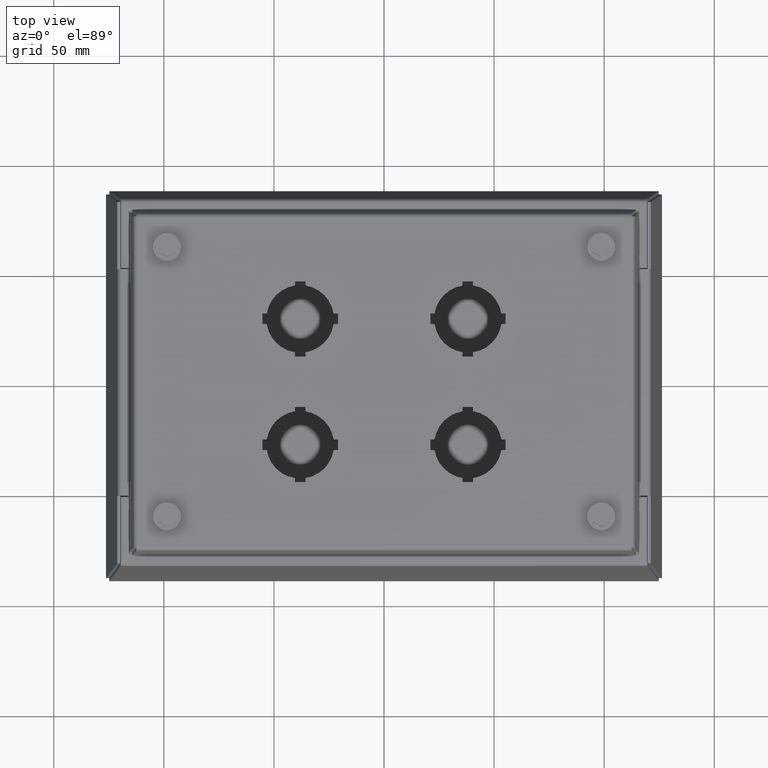
[diagram: clean part render]
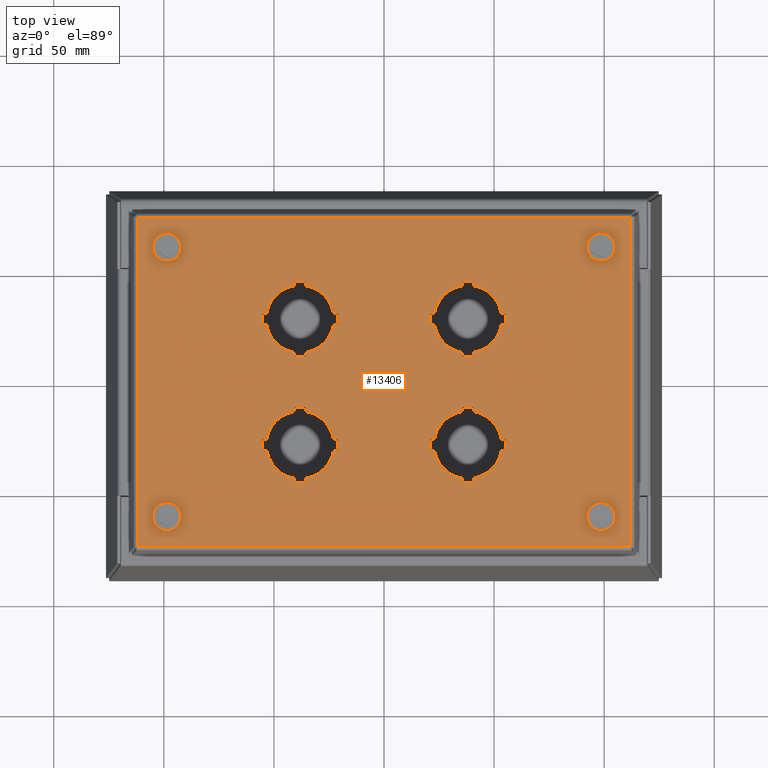
[diagram: same view with one face highlighted and labeled with its STEP entity id]
A machine part, top view. The second image highlights one B-rep face of the part: STEP entity #13406.
In plain terms, the highlighted planar face has unit normal (0, 0, -1).
Its self-contained STEP definition (entity closure, byte-faithful):
#86 = DIRECTION ( 'NONE',  ( 1.000000000000000000, -0.000000000000000000, -0.000000000000000000 ) ) ;
#89 = EDGE_CURVE ( 'NONE', #6022, #2718, #14636, .T. ) ;
#103 = VERTEX_POINT ( 'NONE', #6390 ) ;
#111 = EDGE_CURVE ( 'NONE', #238, #10286, #4180, .T. ) ;
#121 = VERTEX_POINT ( 'NONE', #11162 ) ;
#126 = VERTEX_POINT ( 'NONE', #12635 ) ;
#128 = DIRECTION ( 'NONE',  ( 1.000000000000000000, -0.000000000000000000, -0.000000000000000000 ) ) ;
#132 = VERTEX_POINT ( 'NONE', #14825 ) ;
#141 = EDGE_LOOP ( 'NONE', ( #8679, #6070, #14256, #5951, #10844, #9612, #4865, #6375, #920, #5746, #3153, #11161, #11823, #6807, #12253, #11814 ) ) ;
#166 = FACE_BOUND ( 'NONE', #13700, .T. ) ;
#180 = VERTEX_POINT ( 'NONE', #7997 ) ;
#218 = CARTESIAN_POINT ( 'NONE',  ( 4.400837431718741755, 3.006499999999999950, 4.532000000000000917 ) ) ;
#236 = DIRECTION ( 'NONE',  ( -1.000000000000000000, 3.666652647367840208E-15, 4.490354428184182989E-31 ) ) ;
#238 = VERTEX_POINT ( 'NONE', #855 ) ;
#252 = VECTOR ( 'NONE', #4561, 39.37007874015748143 ) ;
#279 = VERTEX_POINT ( 'NONE', #15464 ) ;
#280 = CARTESIAN_POINT ( 'NONE',  ( 1.500000000000003997, 1.124999999999999778, 4.532000000000000028 ) ) ;
#307 = LINE ( 'NONE', #13124, #4016 ) ;
#309 = LINE ( 'NONE', #11246, #11973 ) ;
#328 = ORIENTED_EDGE ( 'NONE', *, *, #5633, .T. ) ;
#334 = CARTESIAN_POINT ( 'NONE',  ( 1.595000000000003970, 1.796999999999995934, 4.532000000000000028 ) ) ;
#339 = CARTESIAN_POINT ( 'NONE',  ( 2.172000000000000153, 1.219999999999999751, 4.532000000000000028 ) ) ;
#342 = ORIENTED_EDGE ( 'NONE', *, *, #5174, .T. ) ;
#355 = VERTEX_POINT ( 'NONE', #15391 ) ;
#427 = CARTESIAN_POINT ( 'NONE',  ( 1.500000000000003997, -1.125000000000000222, 4.532000000000000028 ) ) ;
#468 = EDGE_CURVE ( 'NONE', #1715, #925, #11954, .T. ) ;
#479 = VECTOR ( 'NONE', #13205, 39.37007874015748143 ) ;
#526 = EDGE_CURVE ( 'NONE', #11867, #14862, #3723, .T. ) ;
#653 = EDGE_CURVE ( 'NONE', #180, #13330, #5141, .T. ) ;
#692 = ORIENTED_EDGE ( 'NONE', *, *, #2820, .T. ) ;
#707 = CARTESIAN_POINT ( 'NONE',  ( 4.400837431718744419, 2.934337431718726741, 4.532000000000000917 ) ) ;
#720 = CARTESIAN_POINT ( 'NONE',  ( 1.405000000000004023, -0.4530000000000042881, 4.532000000000000028 ) ) ;
#744 = CARTESIAN_POINT ( 'NONE',  ( 0.8280000000000119487, -1.220000000000001528, 4.532000000000000028 ) ) ;
#751 = EDGE_CURVE ( 'NONE', #2616, #3397, #14327, .T. ) ;
#775 = CIRCLE ( 'NONE', #14242, 0.6049999999999960965 ) ;
#782 = LINE ( 'NONE', #13126, #479 ) ;
#821 = VECTOR ( 'NONE', #10707, 39.37007874015748143 ) ;
#833 = VECTOR ( 'NONE', #4841, 39.37007874015748143 ) ;
#846 = ORIENTED_EDGE ( 'NONE', *, *, #2016, .T. ) ;
#855 = CARTESIAN_POINT ( 'NONE',  ( 0.9025052301484217665, -1.220000000000000639, 4.532000000000000028 ) ) ;
#887 = VERTEX_POINT ( 'NONE', #707 ) ;
#920 = ORIENTED_EDGE ( 'NONE', *, *, #9769, .T. ) ;
#925 = VERTEX_POINT ( 'NONE', #14932 ) ;
#1034 = EDGE_CURVE ( 'NONE', #10819, #10819, #12416, .T. ) ;
#1038 = DIRECTION ( 'NONE',  ( 0.000000000000000000, 1.224646799147350002E-16, -1.000000000000000000 ) ) ;
#1059 = CARTESIAN_POINT ( 'NONE',  ( 2.172000000000000153, -1.030000000000000249, 4.532000000000000028 ) ) ;
#1064 = ORIENTED_EDGE ( 'NONE', *, *, #7065, .T. ) ;
#1096 = LINE ( 'NONE', #15334, #13152 ) ;
#1108 = DIRECTION ( 'NONE',  ( 1.000000000000000000, -0.000000000000000000, -0.000000000000000000 ) ) ;
#1119 = ORIENTED_EDGE ( 'NONE', *, *, #4466, .T. ) ;
#1130 = LINE ( 'NONE', #10671, #10572 ) ;
#1136 = ORIENTED_EDGE ( 'NONE', *, *, #111, .T. ) ;
#1146 = VECTOR ( 'NONE', #9079, 39.37007874015748143 ) ;
#1151 = DIRECTION ( 'NONE',  ( 0.000000000000000000, -1.000000000000000000, 0.000000000000000000 ) ) ;
#1172 = EDGE_CURVE ( 'NONE', #8537, #8537, #3665, .T. ) ;
#1235 = CARTESIAN_POINT ( 'NONE',  ( -4.472999999999999865, 3.006499999999999950, 4.532000000000000917 ) ) ;
#1251 = ORIENTED_EDGE ( 'NONE', *, *, #7287, .T. ) ;
#1296 = VERTEX_POINT ( 'NONE', #13515 ) ;
#1307 = DIRECTION ( 'NONE',  ( 1.000000000000000000, -0.000000000000000000, -0.000000000000000000 ) ) ;
#1336 = CARTESIAN_POINT ( 'NONE',  ( 0.8280000000000119487, -1.030000000000000249, 4.532000000000000028 ) ) ;
#1354 = CARTESIAN_POINT ( 'NONE',  ( -1.404999999999999805, -1.796999999999996378, 4.532000000000000028 ) ) ;
#1405 = LINE ( 'NONE', #12212, #833 ) ;
#1422 = CARTESIAN_POINT ( 'NONE',  ( -1.500000000000000222, -1.125000000000000222, 4.532000000000000028 ) ) ;
#1426 = DIRECTION ( 'NONE',  ( 0.000000000000000000, 1.000000000000000000, 0.000000000000000000 ) ) ;
#1432 = CARTESIAN_POINT ( 'NONE',  ( -1.594999999999995977, -0.5275052301484176587, 4.532000000000000028 ) ) ;
#1452 = ORIENTED_EDGE ( 'NONE', *, *, #9852, .T. ) ;
#1465 = CARTESIAN_POINT ( 'NONE',  ( -2.097494769851582674, 1.029999999999999805, 4.532000000000000028 ) ) ;
#1506 = CARTESIAN_POINT ( 'NONE',  ( -1.500000000000000222, -1.125000000000000222, 4.532000000000000028 ) ) ;
#1622 = CARTESIAN_POINT ( 'NONE',  ( -3.883000000000000451, -2.409500000000000419, 4.532000000000000028 ) ) ;
#1630 = EDGE_CURVE ( 'NONE', #10850, #2249, #5049, .T. ) ;
#1693 = VERTEX_POINT ( 'NONE', #14819 ) ;
#1692 = DIRECTION ( 'NONE',  ( 1.000000000000000000, -0.000000000000000000, -0.000000000000000000 ) ) ;
#1715 = VERTEX_POINT ( 'NONE', #3067 ) ;
#1718 = EDGE_CURVE ( 'NONE', #9697, #11840, #12478, .T. ) ;
#1736 = ORIENTED_EDGE ( 'NONE', *, *, #8189, .T. ) ;
#1746 = CARTESIAN_POINT ( 'NONE',  ( -0.9025052301484178807, 1.219999999999999751, 4.532000000000000028 ) ) ;
#1766 = CARTESIAN_POINT ( 'NONE',  ( -1.594999999999995977, 1.796999999999995934, 4.532000000000000028 ) ) ;
#1783 = VECTOR ( 'NONE', #15237, 39.37007874015748143 ) ;
#1794 = CARTESIAN_POINT ( 'NONE',  ( -1.404999999999999805, -1.722494769851583118, 4.532000000000000028 ) ) ;
#1804 = EDGE_CURVE ( 'NONE', #11990, #279, #13943, .T. ) ;
#1848 = DIRECTION ( 'NONE',  ( -3.666652647367819698E-15, 1.000000000000000000, 1.224646799147350002E-16 ) ) ;
#1897 = EDGE_CURVE ( 'NONE', #5619, #14212, #15279, .T. ) ;
#1912 = EDGE_CURVE ( 'NONE', #14711, #2460, #6904, .T. ) ;
#1972 = CARTESIAN_POINT ( 'NONE',  ( -1.404999999999999805, 0.4530000000000036220, 4.532000000000000028 ) ) ;
#1978 = CIRCLE ( 'NONE', #9970, 0.1175000000000000488 ) ;
#1998 = ORIENTED_EDGE ( 'NONE', *, *, #6185, .T. ) ;
#2016 = EDGE_CURVE ( 'NONE', #10782, #9299, #2688, .T. ) ;
#2026 = VECTOR ( 'NONE', #8451, 39.37007874015748143 ) ;
#2045 = DIRECTION ( 'NONE',  ( -1.000000000000000000, -3.666652647367829953E-15, -4.490354428184169852E-31 ) ) ;
#2051 = DIRECTION ( 'NONE',  ( 0.000000000000000000, 1.000000000000000000, 1.224646799147350002E-16 ) ) ;
#2067 = VERTEX_POINT ( 'NONE', #14329 ) ;
#2094 = VERTEX_POINT ( 'NONE', #11496 ) ;
#2103 = EDGE_CURVE ( 'NONE', #4276, #9691, #11578, .T. ) ;
#2136 = CARTESIAN_POINT ( 'NONE',  ( -1.594999999999995977, 0.4530000000000036220, 4.532000000000000028 ) ) ;
#2166 = CARTESIAN_POINT ( 'NONE',  ( 3.883000000000000451, 2.409499999999999975, 4.532000000000000917 ) ) ;
#2194 = VECTOR ( 'NONE', #8526, 39.37007874015748143 ) ;
#2220 = VECTOR ( 'NONE', #13894, 39.37007874015748143 ) ;
#2249 = VERTEX_POINT ( 'NONE', #6434 ) ;
#2275 = EDGE_CURVE ( 'NONE', #925, #7331, #12934, .T. ) ;
#2285 = CARTESIAN_POINT ( 'NONE',  ( -4.400837431718740866, 3.006499999999999950, 4.532000000000000917 ) ) ;
#2315 = VERTEX_POINT ( 'NONE', #10332 ) ;
#2321 = AXIS2_PLACEMENT_3D ( 'NONE', #12256, #6308, #11076 ) ;
#2347 = EDGE_CURVE ( 'NONE', #13274, #14216, #4609, .T. ) ;
#2364 = ORIENTED_EDGE ( 'NONE', *, *, #12130, .T. ) ;
#2379 = DIRECTION ( 'NONE',  ( -1.000000000000000000, -0.000000000000000000, -0.000000000000000000 ) ) ;
#2407 = VERTEX_POINT ( 'NONE', #11508 ) ;
#2442 = ORIENTED_EDGE ( 'NONE', *, *, #2914, .T. ) ;
#2460 = VERTEX_POINT ( 'NONE', #11979 ) ;
#2526 = CARTESIAN_POINT ( 'NONE',  ( 3.883000000000000451, 2.291999999999999815, 4.532000000000000917 ) ) ;
#2563 = ORIENTED_EDGE ( 'NONE', *, *, #8344, .T. ) ;
#2603 = ORIENTED_EDGE ( 'NONE', *, *, #653, .T. ) ;
#2616 = VERTEX_POINT ( 'NONE', #14786 ) ;
#2663 = CARTESIAN_POINT ( 'NONE',  ( -0.8280000000000039551, 1.219999999999999751, 4.532000000000000028 ) ) ;
#2688 = CIRCLE ( 'NONE', #8682, 0.6049999999999960965 ) ;
#2718 = VERTEX_POINT ( 'NONE', #14060 ) ;
#2731 = EDGE_CURVE ( 'NONE', #4619, #8573, #7198, .T. ) ;
#2820 = EDGE_CURVE ( 'NONE', #3021, #1693, #782, .T. ) ;
#2904 = VERTEX_POINT ( 'NONE', #8925 ) ;
#2911 = LINE ( 'NONE', #7676, #10787 ) ;
#2914 = EDGE_CURVE ( 'NONE', #11029, #4276, #13222, .T. ) ;
#2989 = CARTESIAN_POINT ( 'NONE',  ( 1.405000000000004023, 0.4530000000000036220, 4.532000000000000028 ) ) ;
#3003 = VERTEX_POINT ( 'NONE', #1766 ) ;
#3010 = EDGE_CURVE ( 'NONE', #10050, #132, #309, .T. ) ;
#3021 = VERTEX_POINT ( 'NONE', #6245 ) ;
#3067 = CARTESIAN_POINT ( 'NONE',  ( -1.404999999999999805, 1.796999999999995934, 4.532000000000000028 ) ) ;
#3094 = ORIENTED_EDGE ( 'NONE', *, *, #4020, .T. ) ;
#3122 = DIRECTION ( 'NONE',  ( 0.000000000000000000, 1.000000000000000000, 0.000000000000000000 ) ) ;
#3153 = ORIENTED_EDGE ( 'NONE', *, *, #15190, .T. ) ;
#3177 = DIRECTION ( 'NONE',  ( 0.000000000000000000, 1.224646799147350002E-16, -1.000000000000000000 ) ) ;
#3200 = AXIS2_PLACEMENT_3D ( 'NONE', #12115, #6007, #9357 ) ;
#3272 = ORIENTED_EDGE ( 'NONE', *, *, #1912, .T. ) ;
#3326 = VECTOR ( 'NONE', #9585, 39.37007874015748143 ) ;
#3353 = DIRECTION ( 'NONE',  ( 0.000000000000000000, 1.000000000000000000, 0.000000000000000000 ) ) ;
#3385 = CARTESIAN_POINT ( 'NONE',  ( 1.595000000000003970, -1.722494769851582674, 4.532000000000000028 ) ) ;
#3397 = VERTEX_POINT ( 'NONE', #1059 ) ;
#3429 = VECTOR ( 'NONE', #7294, 39.37007874015748143 ) ;
#3450 = CARTESIAN_POINT ( 'NONE',  ( -2.171999999999992159, 1.030000000000000027, 4.532000000000000028 ) ) ;
#3485 = DIRECTION ( 'NONE',  ( -0.000000000000000000, -1.000000000000000000, -1.224646799147350002E-16 ) ) ;
#3490 = VECTOR ( 'NONE', #2045, 39.37007874015748143 ) ;
#3500 = CARTESIAN_POINT ( 'NONE',  ( -2.097494769851582674, -1.220000000000000417, 4.532000000000000028 ) ) ;
#3583 = EDGE_LOOP ( 'NONE', ( #9933, #8631, #3272, #4874, #2364, #12902, #10889, #1251, #3094, #1119, #13497, #1998, #7336, #692, #11236, #10847 ) ) ;
#3612 = VECTOR ( 'NONE', #236, 39.37007874015748143 ) ;
#3619 = VERTEX_POINT ( 'NONE', #12075 ) ;
#3649 = CARTESIAN_POINT ( 'NONE',  ( -2.171999999999992159, -1.030000000000000249, 4.532000000000000028 ) ) ;
#3655 = DIRECTION ( 'NONE',  ( -0.000000000000000000, 1.224646799147350002E-16, -1.000000000000000000 ) ) ;
#3663 = CARTESIAN_POINT ( 'NONE',  ( -1.594999999999995977, 1.796999999999995934, 4.532000000000000028 ) ) ;
#3665 = CIRCLE ( 'NONE', #6913, 0.1175000000000000488 ) ;
#3723 = LINE ( 'NONE', #3649, #12152 ) ;
#3766 = AXIS2_PLACEMENT_3D ( 'NONE', #280, #13559, #6135 ) ;
#3832 = EDGE_LOOP ( 'NONE', ( #10377 ) ) ;
#3840 = LINE ( 'NONE', #8601, #7241 ) ;
#3850 = CARTESIAN_POINT ( 'NONE',  ( -3.883000000000000451, 2.291999999999999815, 4.532000000000000917 ) ) ;
#3863 = VECTOR ( 'NONE', #13172, 39.37007874015748143 ) ;
#3888 = CARTESIAN_POINT ( 'NONE',  ( 0.8280000000000119487, 1.219999999999999751, 4.532000000000000028 ) ) ;
#3933 = CARTESIAN_POINT ( 'NONE',  ( 1.595000000000003970, -0.4530000000000042881, 4.532000000000000028 ) ) ;
#3966 = CARTESIAN_POINT ( 'NONE',  ( -2.097494769851582674, -1.030000000000000249, 4.532000000000000028 ) ) ;
#4016 = VECTOR ( 'NONE', #4980, 39.37007874015748143 ) ;
#4020 = EDGE_CURVE ( 'NONE', #13190, #1296, #9320, .T. ) ;
#4024 = EDGE_LOOP ( 'NONE', ( #13020 ) ) ;
#4080 = EDGE_CURVE ( 'NONE', #2249, #8225, #9747, .T. ) ;
#4123 = CARTESIAN_POINT ( 'NONE',  ( 0.8280000000000119487, -1.030000000000000249, 4.532000000000000028 ) ) ;
#4180 = LINE ( 'NONE', #6608, #14625 ) ;
#4189 = DIRECTION ( 'NONE',  ( 1.000000000000000000, -0.000000000000000000, -0.000000000000000000 ) ) ;
#4191 = CARTESIAN_POINT ( 'NONE',  ( 1.405000000000004023, -1.796999999999996378, 4.532000000000000028 ) ) ;
#4196 = CARTESIAN_POINT ( 'NONE',  ( -4.472999999999999865, 2.934337431718752054, 4.532000000000000917 ) ) ;
#4216 = ORIENTED_EDGE ( 'NONE', *, *, #6339, .T. ) ;
#4276 = VERTEX_POINT ( 'NONE', #7411 ) ;
#4284 = ORIENTED_EDGE ( 'NONE', *, *, #751, .T. ) ;
#4369 = VERTEX_POINT ( 'NONE', #9765 ) ;
#4397 = EDGE_CURVE ( 'NONE', #12239, #12239, #1978, .T. ) ;
#4399 = EDGE_CURVE ( 'NONE', #8715, #103, #10220, .T. ) ;
#4404 = EDGE_LOOP ( 'NONE', ( #14560, #7510, #12812, #2442, #13080, #2563, #13389, #846, #12971, #13078, #6928, #13229, #9741, #2603, #13909, #12163 ) ) ;
#4454 = FACE_BOUND ( 'NONE', #14099, .T. ) ;
#4466 = EDGE_CURVE ( 'NONE', #1296, #9823, #13738, .T. ) ;
#4502 = CIRCLE ( 'NONE', #9250, 0.6049999999999959854 ) ;
#4558 = DIRECTION ( 'NONE',  ( -2.566656853157479705E-14, -1.000000000000000000, -1.224646799147350002E-16 ) ) ;
#4561 = DIRECTION ( 'NONE',  ( -0.000000000000000000, -1.000000000000000000, -1.224646799147350002E-16 ) ) ;
#4574 = CARTESIAN_POINT ( 'NONE',  ( -2.171999999999992159, 1.219999999999999751, 4.532000000000000028 ) ) ;
#4595 = ORIENTED_EDGE ( 'NONE', *, *, #11744, .F. ) ;
#4609 = LINE ( 'NONE', #720, #14696 ) ;
#4619 = VERTEX_POINT ( 'NONE', #5988 ) ;
#4640 = LINE ( 'NONE', #2136, #11043 ) ;
#4673 = VECTOR ( 'NONE', #9738, 39.37007874015748143 ) ;
#4717 = CARTESIAN_POINT ( 'NONE',  ( 1.500000000000003997, -1.125000000000000222, 4.532000000000000028 ) ) ;
#4767 = CARTESIAN_POINT ( 'NONE',  ( -2.097494769851582230, -1.220000000000000639, 4.532000000000000028 ) ) ;
#4770 = DIRECTION ( 'NONE',  ( -1.000000000000000000, -0.000000000000000000, -0.000000000000000000 ) ) ;
#4771 = CIRCLE ( 'NONE', #3766, 0.6049999999999959854 ) ;
#4796 = CARTESIAN_POINT ( 'NONE',  ( -0.8280000000000039551, -1.220000000000000417, 4.532000000000000028 ) ) ;
#4841 = DIRECTION ( 'NONE',  ( -0.000000000000000000, -1.000000000000000000, -1.224646799147350002E-16 ) ) ;
#4865 = ORIENTED_EDGE ( 'NONE', *, *, #11783, .T. ) ;
#4874 = ORIENTED_EDGE ( 'NONE', *, *, #5714, .T. ) ;
#4890 = ORIENTED_EDGE ( 'NONE', *, *, #1630, .T. ) ;
#4959 = CARTESIAN_POINT ( 'NONE',  ( 2.097494769851586671, 1.219999999999999751, 4.532000000000000028 ) ) ;
#4980 = DIRECTION ( 'NONE',  ( -0.000000000000000000, 1.000000000000000000, 1.224646799147350002E-16 ) ) ;
#5010 = VECTOR ( 'NONE', #14397, 39.37007874015748143 ) ;
#5011 = AXIS2_PLACEMENT_3D ( 'NONE', #13008, #1038, #5807 ) ;
#5049 = LINE ( 'NONE', #14429, #4673 ) ;
#5051 = CARTESIAN_POINT ( 'NONE',  ( 1.405000000000004023, 0.5275052301484172146, 4.532000000000000028 ) ) ;
#5056 = EDGE_CURVE ( 'NONE', #14862, #10396, #775, .T. ) ;
#5094 = LINE ( 'NONE', #8351, #5256 ) ;
#5111 = LINE ( 'NONE', #3933, #2026 ) ;
#5122 = LINE ( 'NONE', #9734, #1146 ) ;
#5141 = LINE ( 'NONE', #14909, #12168 ) ;
#5147 = LINE ( 'NONE', #9988, #8608 ) ;
#5174 = EDGE_CURVE ( 'NONE', #13334, #2616, #10251, .T. ) ;
#5182 = DIRECTION ( 'NONE',  ( 0.000000000000000000, 1.000000000000000000, 0.000000000000000000 ) ) ;
#5189 = CARTESIAN_POINT ( 'NONE',  ( 2.172000000000000153, 1.219999999999999751, 4.532000000000000028 ) ) ;
#5193 = AXIS2_PLACEMENT_3D ( 'NONE', #9155, #11665, #3122 ) ;
#5197 = DIRECTION ( 'NONE',  ( -0.000000000000000000, -1.000000000000000000, -1.224646799147350002E-16 ) ) ;
#5242 = VECTOR ( 'NONE', #11559, 39.37007874015748143 ) ;
#5256 = VECTOR ( 'NONE', #4770, 39.37007874015748143 ) ;
#5263 = VECTOR ( 'NONE', #86, 39.37007874015748143 ) ;
#5265 = VERTEX_POINT ( 'NONE', #11291 ) ;
#5327 = CIRCLE ( 'NONE', #11838, 0.6049999999999960965 ) ;
#5352 = CARTESIAN_POINT ( 'NONE',  ( -2.097494769851582674, 1.219999999999999751, 4.532000000000000028 ) ) ;
#5374 = EDGE_CURVE ( 'NONE', #11840, #11029, #5094, .T. ) ;
#5408 = CARTESIAN_POINT ( 'NONE',  ( -1.500000000000000222, 1.124999999999999778, 4.532000000000000028 ) ) ;
#5432 = EDGE_CURVE ( 'NONE', #126, #2067, #9632, .T. ) ;
#5446 = VERTEX_POINT ( 'NONE', #1336 ) ;
#5456 = CARTESIAN_POINT ( 'NONE',  ( 1.595000000000005302, -0.5275052301484179917, 4.532000000000000028 ) ) ;
#5504 = DIRECTION ( 'NONE',  ( 0.000000000000000000, 1.224646799147350002E-16, -1.000000000000000000 ) ) ;
#5534 = CIRCLE ( 'NONE', #13530, 0.6049999999999959854 ) ;
#5554 = DIRECTION ( 'NONE',  ( 0.000000000000000000, -1.000000000000000000, 0.000000000000000000 ) ) ;
#5559 = CARTESIAN_POINT ( 'NONE',  ( -1.594999999999995977, -1.796999999999996378, 4.532000000000000028 ) ) ;
#5585 = ORIENTED_EDGE ( 'NONE', *, *, #13140, .T. ) ;
#5588 = LINE ( 'NONE', #12795, #10107 ) ;
#5591 = AXIS2_PLACEMENT_3D ( 'NONE', #13635, #5504, #12628 ) ;
#5603 = CARTESIAN_POINT ( 'NONE',  ( 0.8280000000000119487, 1.029999999999999805, 4.532000000000000028 ) ) ;
#5619 = VERTEX_POINT ( 'NONE', #11501 ) ;
#5625 = DIRECTION ( 'NONE',  ( -0.000000000000000000, -1.000000000000000000, -1.224646799147350002E-16 ) ) ;
#5629 = CARTESIAN_POINT ( 'NONE',  ( 1.500000000000003997, 1.124999999999999778, 4.532000000000000028 ) ) ;
#5633 = EDGE_CURVE ( 'NONE', #2904, #2904, #9515, .T. ) ;
#5641 = FACE_BOUND ( 'NONE', #3583, .T. ) ;
#5710 = DIRECTION ( 'NONE',  ( 1.000000000000000000, -0.000000000000000000, -0.000000000000000000 ) ) ;
#5714 = EDGE_CURVE ( 'NONE', #2460, #9257, #4502, .T. ) ;
#5729 = CARTESIAN_POINT ( 'NONE',  ( 0.9025052301484213224, 1.029999999999999805, 4.532000000000000028 ) ) ;
#5746 = ORIENTED_EDGE ( 'NONE', *, *, #10254, .T. ) ;
#5807 = DIRECTION ( 'NONE',  ( 0.000000000000000000, 1.000000000000000000, 0.000000000000000000 ) ) ;
#5873 = EDGE_CURVE ( 'NONE', #3003, #1715, #14303, .T. ) ;
#5931 = VERTEX_POINT ( 'NONE', #9183 ) ;
#5951 = ORIENTED_EDGE ( 'NONE', *, *, #11750, .T. ) ;
#5988 = CARTESIAN_POINT ( 'NONE',  ( -1.404999999999999805, -0.5275052301484178807, 4.532000000000000028 ) ) ;
#6007 = DIRECTION ( 'NONE',  ( 0.000000000000000000, 1.224646799147350002E-16, -1.000000000000000000 ) ) ;
#6022 = VERTEX_POINT ( 'NONE', #5352 ) ;
#6050 = DIRECTION ( 'NONE',  ( 0.000000000000000000, 1.224646799147350002E-16, -1.000000000000000000 ) ) ;
#6070 = ORIENTED_EDGE ( 'NONE', *, *, #5432, .T. ) ;
#6090 = DIRECTION ( 'NONE',  ( 0.000000000000000000, -1.000000000000000000, 0.000000000000000000 ) ) ;
#6135 = DIRECTION ( 'NONE',  ( 0.000000000000000000, 1.000000000000000000, 0.000000000000000000 ) ) ;
#6185 = EDGE_CURVE ( 'NONE', #10506, #3619, #5534, .T. ) ;
#6213 = LINE ( 'NONE', #1432, #12243 ) ;
#6226 = CARTESIAN_POINT ( 'NONE',  ( -0.9025052301484173256, -1.030000000000000249, 4.532000000000000028 ) ) ;
#6245 = CARTESIAN_POINT ( 'NONE',  ( 1.405000000000003801, 1.796999999999995934, 4.532000000000000028 ) ) ;
#6276 = LINE ( 'NONE', #339, #2194 ) ;
#6284 = EDGE_CURVE ( 'NONE', #14628, #2315, #4771, .T. ) ;
#6290 = CARTESIAN_POINT ( 'NONE',  ( -3.883000000000000451, -2.527000000000000579, 4.532000000000000028 ) ) ;
#6308 = DIRECTION ( 'NONE',  ( 0.000000000000000000, 1.224646799147350002E-16, -1.000000000000000000 ) ) ;
#6325 = CARTESIAN_POINT ( 'NONE',  ( -1.404999999999999805, 1.796999999999995934, 4.532000000000000028 ) ) ;
#6339 = EDGE_CURVE ( 'NONE', #14216, #13334, #5111, .T. ) ;
#6375 = ORIENTED_EDGE ( 'NONE', *, *, #14309, .T. ) ;
#6390 = CARTESIAN_POINT ( 'NONE',  ( 1.405000000000003801, -1.722494769851582896, 4.532000000000000028 ) ) ;
#6410 = DIRECTION ( 'NONE',  ( -0.000000000000000000, 1.224646799147350002E-16, -1.000000000000000000 ) ) ;
#6434 = CARTESIAN_POINT ( 'NONE',  ( 2.097494769851586671, -1.219999999999999085, 4.532000000000000028 ) ) ;
#6481 = VECTOR ( 'NONE', #1848, 39.37007874015748143 ) ;
#6554 = DIRECTION ( 'NONE',  ( 0.000000000000000000, -1.000000000000000000, 0.000000000000000000 ) ) ;
#6572 = ORIENTED_EDGE ( 'NONE', *, *, #14987, .T. ) ;
#6608 = CARTESIAN_POINT ( 'NONE',  ( 0.9025052301484213224, -1.220000000000000417, 4.532000000000000028 ) ) ;
#6723 = DIRECTION ( 'NONE',  ( -0.000000000000000000, 1.224646799147350002E-16, -1.000000000000000000 ) ) ;
#6787 = VECTOR ( 'NONE', #10250, 39.37007874015748143 ) ;
#6788 = EDGE_CURVE ( 'NONE', #9299, #355, #10461, .T. ) ;
#6807 = ORIENTED_EDGE ( 'NONE', *, *, #5873, .T. ) ;
#6898 = VECTOR ( 'NONE', #1108, 39.37007874015748143 ) ;
#6904 = LINE ( 'NONE', #6974, #3429 ) ;
#6913 = AXIS2_PLACEMENT_3D ( 'NONE', #7562, #3655, #6090 ) ;
#6928 = ORIENTED_EDGE ( 'NONE', *, *, #526, .T. ) ;
#6935 = DIRECTION ( 'NONE',  ( 1.000000000000000000, -0.000000000000000000, -0.000000000000000000 ) ) ;
#6974 = CARTESIAN_POINT ( 'NONE',  ( 2.172000000000000153, 1.029999999999999805, 4.532000000000000028 ) ) ;
#7010 = CARTESIAN_POINT ( 'NONE',  ( -0.9025052301484173256, 1.219999999999999751, 4.532000000000000028 ) ) ;
#7065 = EDGE_CURVE ( 'NONE', #14413, #5265, #5327, .T. ) ;
#7117 = EDGE_CURVE ( 'NONE', #2718, #3003, #1130, .T. ) ;
#7121 = CARTESIAN_POINT ( 'NONE',  ( 2.097494769851586671, -1.030000000000000249, 4.532000000000000028 ) ) ;
#7198 = CIRCLE ( 'NONE', #14946, 0.6049999999999960965 ) ;
#7199 = EDGE_CURVE ( 'NONE', #9823, #10506, #13185, .T. ) ;
#7201 = DIRECTION ( 'NONE',  ( -0.000000000000000000, 1.000000000000000000, 1.224646799147350002E-16 ) ) ;
#7229 = CARTESIAN_POINT ( 'NONE',  ( 0.8280000000000119487, 1.219999999999999751, 4.532000000000000028 ) ) ;
#7241 = VECTOR ( 'NONE', #7201, 39.37007874015748143 ) ;
#7287 = EDGE_CURVE ( 'NONE', #15238, #13190, #9075, .T. ) ;
#7294 = DIRECTION ( 'NONE',  ( -1.000000000000000000, 1.833326323683909849E-15, 2.245177214092078795E-31 ) ) ;
#7301 = LINE ( 'NONE', #1354, #3863 ) ;
#7322 = EDGE_CURVE ( 'NONE', #103, #238, #10328, .T. ) ;
#7331 = VERTEX_POINT ( 'NONE', #1746 ) ;
#7336 = ORIENTED_EDGE ( 'NONE', *, *, #12623, .T. ) ;
#7402 = DIRECTION ( 'NONE',  ( -0.000000000000000000, -1.000000000000000000, -1.224646799147350002E-16 ) ) ;
#7411 = CARTESIAN_POINT ( 'NONE',  ( -1.404999999999999805, -1.722494769851582452, 4.532000000000000028 ) ) ;
#7426 = VECTOR ( 'NONE', #5197, 39.37007874015748143 ) ;
#7502 = VECTOR ( 'NONE', #1692, 39.37007874015748143 ) ;
#7510 = ORIENTED_EDGE ( 'NONE', *, *, #1718, .T. ) ;
#7533 = VECTOR ( 'NONE', #10574, 39.37007874015748143 ) ;
#7562 = CARTESIAN_POINT ( 'NONE',  ( -3.883000000000000451, 2.409499999999999975, 4.532000000000000917 ) ) ;
#7564 = DIRECTION ( 'NONE',  ( -3.666652647367829953E-15, 1.000000000000000000, 1.224646799147350002E-16 ) ) ;
#7604 = DIRECTION ( 'NONE',  ( -0.000000000000000000, 1.000000000000000000, 1.224646799147350002E-16 ) ) ;
#7641 = CARTESIAN_POINT ( 'NONE',  ( 2.172000000000000153, -1.220000000000000417, 4.532000000000000028 ) ) ;
#7673 = VECTOR ( 'NONE', #5625, 39.37007874015748143 ) ;
#7676 = CARTESIAN_POINT ( 'NONE',  ( 1.595000000000003970, 0.5275052301484169925, 4.532000000000000028 ) ) ;
#7767 = AXIS2_PLACEMENT_3D ( 'NONE', #15191, #9321, #12930 ) ;
#7773 = DIRECTION ( 'NONE',  ( 0.000000000000000000, 1.224646799147350002E-16, -1.000000000000000000 ) ) ;
#7788 = LINE ( 'NONE', #4123, #7502 ) ;
#7799 = CARTESIAN_POINT ( 'NONE',  ( -1.404999999999999805, -0.4530000000000042881, 4.532000000000000028 ) ) ;
#7800 = AXIS2_PLACEMENT_3D ( 'NONE', #1235, #9693, #14459 ) ;
#7941 = EDGE_CURVE ( 'NONE', #887, #5931, #11944, .T. ) ;
#7970 = FACE_BOUND ( 'NONE', #3832, .T. ) ;
#7997 = CARTESIAN_POINT ( 'NONE',  ( -1.594999999999995977, -0.4530000000000042881, 4.532000000000000028 ) ) ;
#8189 = EDGE_CURVE ( 'NONE', #8225, #11060, #5588, .T. ) ;
#8225 = VERTEX_POINT ( 'NONE', #3385 ) ;
#8344 = EDGE_CURVE ( 'NONE', #9691, #121, #7301, .T. ) ;
#8348 = LINE ( 'NONE', #334, #8377 ) ;
#8351 = CARTESIAN_POINT ( 'NONE',  ( -0.8280000000000039551, -1.220000000000000417, 4.532000000000000028 ) ) ;
#8377 = VECTOR ( 'NONE', #13314, 39.37007874015748143 ) ;
#8442 = CARTESIAN_POINT ( 'NONE',  ( -1.594999999999995977, -0.5275052301484174366, 4.532000000000000028 ) ) ;
#8451 = DIRECTION ( 'NONE',  ( 1.833326323683909928E-14, -1.000000000000000000, -1.224646799147350002E-16 ) ) ;
#8498 = LINE ( 'NONE', #1465, #3612 ) ;
#8526 = DIRECTION ( 'NONE',  ( -0.000000000000000000, -1.000000000000000000, -1.224646799147350002E-16 ) ) ;
#8537 = VERTEX_POINT ( 'NONE', #3850 ) ;
#8560 = VECTOR ( 'NONE', #11000, 39.37007874015748143 ) ;
#8573 = VERTEX_POINT ( 'NONE', #9135 ) ;
#8601 = CARTESIAN_POINT ( 'NONE',  ( -2.171999999999992159, -1.220000000000000417, 4.532000000000000028 ) ) ;
#8608 = VECTOR ( 'NONE', #7564, 39.37007874015748143 ) ;
#8631 = ORIENTED_EDGE ( 'NONE', *, *, #13579, .T. ) ;
#8645 = DIRECTION ( 'NONE',  ( -1.000000000000000000, -0.000000000000000000, -0.000000000000000000 ) ) ;
#8679 = ORIENTED_EDGE ( 'NONE', *, *, #10884, .T. ) ;
#8682 = AXIS2_PLACEMENT_3D ( 'NONE', #1422, #13247, #10973 ) ;
#8715 = VERTEX_POINT ( 'NONE', #4191 ) ;
#8830 = ORIENTED_EDGE ( 'NONE', *, *, #7941, .F. ) ;
#8893 = CARTESIAN_POINT ( 'NONE',  ( 1.405000000000004023, -1.796999999999996378, 4.532000000000000028 ) ) ;
#8925 = CARTESIAN_POINT ( 'NONE',  ( 3.883000000000000451, -2.527000000000000579, 4.532000000000000028 ) ) ;
#8931 = DIRECTION ( 'NONE',  ( 0.000000000000000000, 1.224646799147350002E-16, -1.000000000000000000 ) ) ;
#8946 = CARTESIAN_POINT ( 'NONE',  ( -1.500000000000000222, 1.124999999999999778, 4.532000000000000028 ) ) ;
#8996 = EDGE_CURVE ( 'NONE', #13330, #4619, #5122, .T. ) ;
#9075 = CIRCLE ( 'NONE', #2321, 0.6049999999999959854 ) ;
#9079 = DIRECTION ( 'NONE',  ( -0.000000000000000000, -1.000000000000000000, -1.224646799147350002E-16 ) ) ;
#9135 = CARTESIAN_POINT ( 'NONE',  ( -0.9025052301484178807, -1.030000000000000471, 4.532000000000000028 ) ) ;
#9145 = EDGE_CURVE ( 'NONE', #11060, #8715, #1096, .T. ) ;
#9155 = CARTESIAN_POINT ( 'NONE',  ( -1.500000000000000222, 1.124999999999999778, 4.532000000000000028 ) ) ;
#9161 = FACE_OUTER_BOUND ( 'NONE', #12350, .T. ) ;
#9168 = VECTOR ( 'NONE', #2051, 39.37007874015748143 ) ;
#9183 = CARTESIAN_POINT ( 'NONE',  ( 4.400837431718747084, -2.934337431718726297, 4.532000000000000028 ) ) ;
#9193 = DIRECTION ( 'NONE',  ( 0.000000000000000000, 1.224646799147350002E-16, -1.000000000000000000 ) ) ;
#9243 = EDGE_CURVE ( 'NONE', #1693, #14628, #8348, .T. ) ;
#9250 = AXIS2_PLACEMENT_3D ( 'NONE', #5629, #15404, #3353 ) ;
#9257 = VERTEX_POINT ( 'NONE', #13388 ) ;
#9299 = VERTEX_POINT ( 'NONE', #4767 ) ;
#9320 = LINE ( 'NONE', #5729, #3490 ) ;
#9321 = DIRECTION ( 'NONE',  ( 0.000000000000000000, 1.224646799147350002E-16, -1.000000000000000000 ) ) ;
#9342 = DIRECTION ( 'NONE',  ( 0.000000000000000000, 1.000000000000000000, 0.000000000000000000 ) ) ;
#9345 = DIRECTION ( 'NONE',  ( 1.000000000000000000, -0.000000000000000000, -0.000000000000000000 ) ) ;
#9354 = LINE ( 'NONE', #7010, #9517 ) ;
#9357 = DIRECTION ( 'NONE',  ( 0.000000000000000000, 1.000000000000000000, 0.000000000000000000 ) ) ;
#9415 = LINE ( 'NONE', #4959, #11533 ) ;
#9504 = DIRECTION ( 'NONE',  ( -0.000000000000000000, 1.000000000000000000, 1.224646799147350002E-16 ) ) ;
#9515 = CIRCLE ( 'NONE', #12519, 0.1175000000000000488 ) ;
#9517 = VECTOR ( 'NONE', #6935, 39.37007874015748143 ) ;
#9530 = DIRECTION ( 'NONE',  ( -0.000000000000000000, 1.224646799147350002E-16, -1.000000000000000000 ) ) ;
#9537 = CIRCLE ( 'NONE', #7767, 0.6049999999999959854 ) ;
#9585 = DIRECTION ( 'NONE',  ( 1.000000000000000000, -0.000000000000000000, -0.000000000000000000 ) ) ;
#9588 = LINE ( 'NONE', #14192, #11323 ) ;
#9612 = ORIENTED_EDGE ( 'NONE', *, *, #1897, .T. ) ;
#9632 = LINE ( 'NONE', #2663, #5010 ) ;
#9691 = VERTEX_POINT ( 'NONE', #11962 ) ;
#9693 = DIRECTION ( 'NONE',  ( 0.000000000000000000, 1.224646799147350002E-16, -1.000000000000000000 ) ) ;
#9697 = VERTEX_POINT ( 'NONE', #13366 ) ;
#9734 = CARTESIAN_POINT ( 'NONE',  ( -1.404999999999999805, -0.4530000000000042881, 4.532000000000000028 ) ) ;
#9738 = DIRECTION ( 'NONE',  ( -1.000000000000000000, 1.833326323683909928E-14, 2.245177214092078883E-30 ) ) ;
#9741 = ORIENTED_EDGE ( 'NONE', *, *, #14220, .T. ) ;
#9747 = CIRCLE ( 'NONE', #5011, 0.6049999999999960965 ) ;
#9765 = CARTESIAN_POINT ( 'NONE',  ( -2.097494769851582230, 1.029999999999999805, 4.532000000000000028 ) ) ;
#9769 = EDGE_CURVE ( 'NONE', #4369, #14463, #8498, .T. ) ;
#9776 = CARTESIAN_POINT ( 'NONE',  ( 1.405000000000004023, 1.722494769851582674, 4.532000000000000028 ) ) ;
#9823 = VERTEX_POINT ( 'NONE', #3888 ) ;
#9844 = VERTEX_POINT ( 'NONE', #14839 ) ;
#9852 = EDGE_CURVE ( 'NONE', #5265, #13274, #5147, .T. ) ;
#9933 = ORIENTED_EDGE ( 'NONE', *, *, #11447, .T. ) ;
#9969 = DIRECTION ( 'NONE',  ( 0.000000000000000000, 1.000000000000000000, 0.000000000000000000 ) ) ;
#9970 = AXIS2_PLACEMENT_3D ( 'NONE', #1622, #6410, #6554 ) ;
#9988 = CARTESIAN_POINT ( 'NONE',  ( 1.405000000000004023, -0.5275052301484176587, 4.532000000000000028 ) ) ;
#10050 = VERTEX_POINT ( 'NONE', #14430 ) ;
#10059 = EDGE_CURVE ( 'NONE', #2067, #10248, #9588, .T. ) ;
#10093 = CARTESIAN_POINT ( 'NONE',  ( 2.172000000000000153, 1.029999999999999805, 4.532000000000000028 ) ) ;
#10107 = VECTOR ( 'NONE', #4558, 39.37007874015748143 ) ;
#10115 = ORIENTED_EDGE ( 'NONE', *, *, #4399, .T. ) ;
#10201 = DIRECTION ( 'NONE',  ( -1.000000000000000000, -1.833326323683909928E-14, -2.245177214092078883E-30 ) ) ;
#10206 = EDGE_CURVE ( 'NONE', #8573, #9697, #13570, .T. ) ;
#10220 = LINE ( 'NONE', #8893, #6481 ) ;
#10225 = CIRCLE ( 'NONE', #14961, 0.6049999999999959854 ) ;
#10248 = VERTEX_POINT ( 'NONE', #10503 ) ;
#10250 = DIRECTION ( 'NONE',  ( -0.000000000000000000, 1.000000000000000000, 1.224646799147350002E-16 ) ) ;
#10251 = CIRCLE ( 'NONE', #12008, 0.6049999999999960965 ) ;
#10254 = EDGE_CURVE ( 'NONE', #14463, #2407, #12703, .T. ) ;
#10286 = VERTEX_POINT ( 'NONE', #744 ) ;
#10326 = CARTESIAN_POINT ( 'NONE',  ( 3.883000000000000451, -2.409500000000000419, 4.532000000000000028 ) ) ;
#10328 = CIRCLE ( 'NONE', #5591, 0.6049999999999960965 ) ;
#10332 = CARTESIAN_POINT ( 'NONE',  ( 2.097494769851586227, 1.219999999999999751, 4.532000000000000028 ) ) ;
#10354 = CARTESIAN_POINT ( 'NONE',  ( -2.171999999999992159, 1.029999999999999805, 4.532000000000000028 ) ) ;
#10373 = LINE ( 'NONE', #4196, #5242 ) ;
#10377 = ORIENTED_EDGE ( 'NONE', *, *, #4397, .T. ) ;
#10396 = VERTEX_POINT ( 'NONE', #8442 ) ;
#10407 = AXIS2_PLACEMENT_3D ( 'NONE', #2166, #9530, #1151 ) ;
#10411 = FACE_BOUND ( 'NONE', #4404, .T. ) ;
#10421 = CARTESIAN_POINT ( 'NONE',  ( -4.472999999999999865, -2.934337431718756495, 4.532000000000000028 ) ) ;
#10461 = LINE ( 'NONE', #3500, #1783 ) ;
#10473 = ORIENTED_EDGE ( 'NONE', *, *, #9145, .T. ) ;
#10503 = CARTESIAN_POINT ( 'NONE',  ( -0.9025052301484176587, 1.029999999999999805, 4.532000000000000028 ) ) ;
#10506 = VERTEX_POINT ( 'NONE', #13471 ) ;
#10513 = LINE ( 'NONE', #15290, #252 ) ;
#10560 = VECTOR ( 'NONE', #11688, 39.37007874015748143 ) ;
#10572 = VECTOR ( 'NONE', #9504, 39.37007874015748143 ) ;
#10574 = DIRECTION ( 'NONE',  ( -1.000000000000000000, -0.000000000000000000, -0.000000000000000000 ) ) ;
#10662 = DIRECTION ( 'NONE',  ( 0.000000000000000000, 1.000000000000000000, 0.000000000000000000 ) ) ;
#10671 = CARTESIAN_POINT ( 'NONE',  ( -1.594999999999995977, 1.722494769851582674, 4.532000000000000028 ) ) ;
#10707 = DIRECTION ( 'NONE',  ( -3.666652647367819698E-15, 1.000000000000000000, 1.224646799147350002E-16 ) ) ;
#10782 = VERTEX_POINT ( 'NONE', #11404 ) ;
#10787 = VECTOR ( 'NONE', #12470, 39.37007874015748143 ) ;
#10819 = VERTEX_POINT ( 'NONE', #2526 ) ;
#10844 = ORIENTED_EDGE ( 'NONE', *, *, #14065, .T. ) ;
#10847 = ORIENTED_EDGE ( 'NONE', *, *, #6284, .T. ) ;
#10850 = VERTEX_POINT ( 'NONE', #7641 ) ;
#10867 = FACE_BOUND ( 'NONE', #4024, .T. ) ;
#10884 = EDGE_CURVE ( 'NONE', #7331, #126, #9354, .T. ) ;
#10889 = ORIENTED_EDGE ( 'NONE', *, *, #12034, .T. ) ;
#10906 = CARTESIAN_POINT ( 'NONE',  ( -1.594999999999995977, 0.4530000000000036220, 4.532000000000000028 ) ) ;
#10951 = LINE ( 'NONE', #9776, #821 ) ;
#10973 = DIRECTION ( 'NONE',  ( 0.000000000000000000, 1.000000000000000000, 0.000000000000000000 ) ) ;
#11000 = DIRECTION ( 'NONE',  ( 1.000000000000000000, -0.000000000000000000, -0.000000000000000000 ) ) ;
#11029 = VERTEX_POINT ( 'NONE', #13902 ) ;
#11043 = VECTOR ( 'NONE', #11699, 39.37007874015748143 ) ;
#11060 = VERTEX_POINT ( 'NONE', #14366 ) ;
#11076 = DIRECTION ( 'NONE',  ( 0.000000000000000000, 1.000000000000000000, 0.000000000000000000 ) ) ;
#11116 = CARTESIAN_POINT ( 'NONE',  ( 0.9025052301484217665, 1.029999999999999805, 4.532000000000000028 ) ) ;
#11133 = EDGE_CURVE ( 'NONE', #10286, #5446, #307, .T. ) ;
#11156 = CARTESIAN_POINT ( 'NONE',  ( -0.8280000000000039551, -1.030000000000000249, 4.532000000000000028 ) ) ;
#11161 = ORIENTED_EDGE ( 'NONE', *, *, #89, .T. ) ;
#11162 = CARTESIAN_POINT ( 'NONE',  ( -1.594999999999995977, -1.796999999999996378, 4.532000000000000028 ) ) ;
#11222 = LINE ( 'NONE', #2989, #11798 ) ;
#11236 = ORIENTED_EDGE ( 'NONE', *, *, #9243, .T. ) ;
#11246 = CARTESIAN_POINT ( 'NONE',  ( 1.595000000000003970, 0.4530000000000036220, 4.532000000000000028 ) ) ;
#11291 = CARTESIAN_POINT ( 'NONE',  ( 1.405000000000004023, -0.5275052301484182138, 4.532000000000000028 ) ) ;
#11323 = VECTOR ( 'NONE', #2379, 39.37007874015748143 ) ;
#11335 = CARTESIAN_POINT ( 'NONE',  ( 1.405000000000003801, -0.4530000000000042881, 4.532000000000000028 ) ) ;
#11386 = AXIS2_PLACEMENT_3D ( 'NONE', #8946, #7773, #9969 ) ;
#11404 = CARTESIAN_POINT ( 'NONE',  ( -1.594999999999995977, -1.722494769851583118, 4.532000000000000028 ) ) ;
#11447 = EDGE_CURVE ( 'NONE', #2315, #12015, #9415, .T. ) ;
#11496 = CARTESIAN_POINT ( 'NONE',  ( -1.594999999999995977, 0.5275052301484168815, 4.532000000000000028 ) ) ;
#11501 = CARTESIAN_POINT ( 'NONE',  ( -1.404999999999999805, 0.4530000000000036220, 4.532000000000000028 ) ) ;
#11508 = CARTESIAN_POINT ( 'NONE',  ( -2.171999999999992159, 1.219999999999999751, 4.532000000000000028 ) ) ;
#11532 = DIRECTION ( 'NONE',  ( -1.000000000000000000, -0.000000000000000000, -0.000000000000000000 ) ) ;
#11533 = VECTOR ( 'NONE', #128, 39.37007874015748143 ) ;
#11559 = DIRECTION ( 'NONE',  ( 1.000000000000000000, 0.000000000000000000, 0.000000000000000000 ) ) ;
#11578 = LINE ( 'NONE', #1794, #7673 ) ;
#11601 = VECTOR ( 'NONE', #3485, 39.37007874015748143 ) ;
#11665 = DIRECTION ( 'NONE',  ( 0.000000000000000000, 1.224646799147350002E-16, -1.000000000000000000 ) ) ;
#11688 = DIRECTION ( 'NONE',  ( -0.000000000000000000, 1.000000000000000000, 1.224646799147350002E-16 ) ) ;
#11699 = DIRECTION ( 'NONE',  ( -0.000000000000000000, 1.000000000000000000, 1.224646799147350002E-16 ) ) ;
#11744 = EDGE_CURVE ( 'NONE', #5931, #11990, #15350, .T. ) ;
#11750 = EDGE_CURVE ( 'NONE', #10248, #9844, #9537, .T. ) ;
#11775 = ORIENTED_EDGE ( 'NONE', *, *, #14939, .F. ) ;
#11783 = EDGE_CURVE ( 'NONE', #14212, #2094, #4640, .T. ) ;
#11798 = VECTOR ( 'NONE', #12396, 39.37007874015748143 ) ;
#11814 = ORIENTED_EDGE ( 'NONE', *, *, #2275, .T. ) ;
#11823 = ORIENTED_EDGE ( 'NONE', *, *, #7117, .T. ) ;
#11838 = AXIS2_PLACEMENT_3D ( 'NONE', #4717, #9193, #9342 ) ;
#11840 = VERTEX_POINT ( 'NONE', #4796 ) ;
#11867 = VERTEX_POINT ( 'NONE', #13179 ) ;
#11944 = LINE ( 'NONE', #218, #11601 ) ;
#11954 = LINE ( 'NONE', #6325, #12891 ) ;
#11962 = CARTESIAN_POINT ( 'NONE',  ( -1.404999999999999805, -1.796999999999996378, 4.532000000000000028 ) ) ;
#11973 = VECTOR ( 'NONE', #8645, 39.37007874015748143 ) ;
#11979 = CARTESIAN_POINT ( 'NONE',  ( 2.097494769851586227, 1.030000000000000027, 4.532000000000000028 ) ) ;
#11990 = VERTEX_POINT ( 'NONE', #13337 ) ;
#12008 = AXIS2_PLACEMENT_3D ( 'NONE', #427, #13625, #5182 ) ;
#12015 = VERTEX_POINT ( 'NONE', #5189 ) ;
#12024 = ORIENTED_EDGE ( 'NONE', *, *, #2347, .T. ) ;
#12034 = EDGE_CURVE ( 'NONE', #132, #15238, #11222, .T. ) ;
#12075 = CARTESIAN_POINT ( 'NONE',  ( 1.405000000000004023, 1.722494769851581786, 4.532000000000000028 ) ) ;
#12115 = CARTESIAN_POINT ( 'NONE',  ( -1.500000000000000222, -1.125000000000000222, 4.532000000000000028 ) ) ;
#12130 = EDGE_CURVE ( 'NONE', #9257, #10050, #2911, .T. ) ;
#12152 = VECTOR ( 'NONE', #1307, 39.37007874015748143 ) ;
#12163 = ORIENTED_EDGE ( 'NONE', *, *, #2731, .T. ) ;
#12167 = CARTESIAN_POINT ( 'NONE',  ( 1.595000000000003970, -0.4530000000000042881, 4.532000000000000028 ) ) ;
#12168 = VECTOR ( 'NONE', #4189, 39.37007874015748143 ) ;
#12212 = CARTESIAN_POINT ( 'NONE',  ( 2.172000000000000153, -1.030000000000000249, 4.532000000000000028 ) ) ;
#12221 = ORIENTED_EDGE ( 'NONE', *, *, #4080, .T. ) ;
#12239 = VERTEX_POINT ( 'NONE', #6290 ) ;
#12243 = VECTOR ( 'NONE', #7604, 39.37007874015748143 ) ;
#12253 = ORIENTED_EDGE ( 'NONE', *, *, #468, .T. ) ;
#12256 = CARTESIAN_POINT ( 'NONE',  ( 1.500000000000003997, 1.124999999999999778, 4.532000000000000028 ) ) ;
#12325 = EDGE_CURVE ( 'NONE', #121, #10782, #13617, .T. ) ;
#12350 = EDGE_LOOP ( 'NONE', ( #8830, #11775, #13455, #4595 ) ) ;
#12396 = DIRECTION ( 'NONE',  ( -0.000000000000000000, 1.000000000000000000, 1.224646799147350002E-16 ) ) ;
#12416 = CIRCLE ( 'NONE', #10407, 0.1175000000000000488 ) ;
#12470 = DIRECTION ( 'NONE',  ( -3.666652647367819856E-14, -1.000000000000000000, -1.224646799147350002E-16 ) ) ;
#12478 = LINE ( 'NONE', #11156, #7426 ) ;
#12519 = AXIS2_PLACEMENT_3D ( 'NONE', #10326, #6723, #5554 ) ;
#12588 = ORIENTED_EDGE ( 'NONE', *, *, #1172, .T. ) ;
#12623 = EDGE_CURVE ( 'NONE', #3619, #3021, #10951, .T. ) ;
#12628 = DIRECTION ( 'NONE',  ( 0.000000000000000000, 1.000000000000000000, 0.000000000000000000 ) ) ;
#12635 = CARTESIAN_POINT ( 'NONE',  ( -0.8280000000000039551, 1.219999999999999751, 4.532000000000000028 ) ) ;
#12703 = LINE ( 'NONE', #10354, #10560 ) ;
#12739 = CARTESIAN_POINT ( 'NONE',  ( -1.500000000000000222, -1.125000000000000222, 4.532000000000000028 ) ) ;
#12759 = VECTOR ( 'NONE', #9345, 39.37007874015748143 ) ;
#12795 = CARTESIAN_POINT ( 'NONE',  ( 1.595000000000003970, -1.722494769851583118, 4.532000000000000028 ) ) ;
#12812 = ORIENTED_EDGE ( 'NONE', *, *, #5374, .T. ) ;
#12891 = VECTOR ( 'NONE', #7402, 39.37007874015748143 ) ;
#12895 = DIRECTION ( 'NONE',  ( 0.000000000000000000, 1.000000000000000000, 0.000000000000000000 ) ) ;
#12902 = ORIENTED_EDGE ( 'NONE', *, *, #3010, .T. ) ;
#12926 = VECTOR ( 'NONE', #11532, 39.37007874015748143 ) ;
#12930 = DIRECTION ( 'NONE',  ( 0.000000000000000000, 1.000000000000000000, 0.000000000000000000 ) ) ;
#12934 = CIRCLE ( 'NONE', #5193, 0.6049999999999959854 ) ;
#12971 = ORIENTED_EDGE ( 'NONE', *, *, #6788, .T. ) ;
#13008 = CARTESIAN_POINT ( 'NONE',  ( 1.500000000000003997, -1.125000000000000222, 4.532000000000000028 ) ) ;
#13020 = ORIENTED_EDGE ( 'NONE', *, *, #1034, .T. ) ;
#13078 = ORIENTED_EDGE ( 'NONE', *, *, #14564, .T. ) ;
#13080 = ORIENTED_EDGE ( 'NONE', *, *, #2103, .T. ) ;
#13124 = CARTESIAN_POINT ( 'NONE',  ( 0.8280000000000119487, -1.220000000000000417, 4.532000000000000028 ) ) ;
#13126 = CARTESIAN_POINT ( 'NONE',  ( 1.405000000000004023, 1.796999999999995934, 4.532000000000000028 ) ) ;
#13140 = EDGE_CURVE ( 'NONE', #3397, #10850, #1405, .T. ) ;
#13152 = VECTOR ( 'NONE', #14152, 39.37007874015748143 ) ;
#13172 = DIRECTION ( 'NONE',  ( -1.000000000000000000, -0.000000000000000000, -0.000000000000000000 ) ) ;
#13179 = CARTESIAN_POINT ( 'NONE',  ( -2.171999999999992159, -1.030000000000000249, 4.532000000000000028 ) ) ;
#13185 = LINE ( 'NONE', #7229, #3326 ) ;
#13190 = VERTEX_POINT ( 'NONE', #11116 ) ;
#13205 = DIRECTION ( 'NONE',  ( 1.000000000000000000, -0.000000000000000000, -0.000000000000000000 ) ) ;
#13217 = PLANE ( 'NONE',  #7800 ) ;
#13222 = CIRCLE ( 'NONE', #3200, 0.6049999999999960965 ) ;
#13229 = ORIENTED_EDGE ( 'NONE', *, *, #5056, .T. ) ;
#13247 = DIRECTION ( 'NONE',  ( 0.000000000000000000, 1.224646799147350002E-16, -1.000000000000000000 ) ) ;
#13274 = VERTEX_POINT ( 'NONE', #11335 ) ;
#13314 = DIRECTION ( 'NONE',  ( 3.666652647367819856E-14, -1.000000000000000000, -1.224646799147350002E-16 ) ) ;
#13330 = VERTEX_POINT ( 'NONE', #7799 ) ;
#13334 = VERTEX_POINT ( 'NONE', #5456 ) ;
#13337 = CARTESIAN_POINT ( 'NONE',  ( -4.400837431718745307, -2.934337431718749389, 4.532000000000000028 ) ) ;
#13366 = CARTESIAN_POINT ( 'NONE',  ( -0.8280000000000039551, -1.030000000000000249, 4.532000000000000028 ) ) ;
#13388 = CARTESIAN_POINT ( 'NONE',  ( 1.595000000000003970, 0.5275052301484173256, 4.532000000000000028 ) ) ;
#13389 = ORIENTED_EDGE ( 'NONE', *, *, #12325, .T. ) ;
#13406 = ADVANCED_FACE ( 'NONE', ( #9161, #7970, #13928, #10867, #166, #5641, #10411, #15178, #4454 ), #13217, .F. ) ;
#13455 = ORIENTED_EDGE ( 'NONE', *, *, #1804, .F. ) ;
#13471 = CARTESIAN_POINT ( 'NONE',  ( 0.9025052301484214334, 1.219999999999999751, 4.532000000000000028 ) ) ;
#13497 = ORIENTED_EDGE ( 'NONE', *, *, #7199, .T. ) ;
#13515 = CARTESIAN_POINT ( 'NONE',  ( 0.8280000000000119487, 1.029999999999999583, 4.532000000000000028 ) ) ;
#13530 = AXIS2_PLACEMENT_3D ( 'NONE', #15289, #15437, #10662 ) ;
#13559 = DIRECTION ( 'NONE',  ( 0.000000000000000000, 1.224646799147350002E-16, -1.000000000000000000 ) ) ;
#13570 = LINE ( 'NONE', #6226, #8560 ) ;
#13579 = EDGE_CURVE ( 'NONE', #12015, #14711, #6276, .T. ) ;
#13617 = LINE ( 'NONE', #5559, #6787 ) ;
#13625 = DIRECTION ( 'NONE',  ( 0.000000000000000000, 1.224646799147350002E-16, -1.000000000000000000 ) ) ;
#13635 = CARTESIAN_POINT ( 'NONE',  ( 1.500000000000003997, -1.125000000000000222, 4.532000000000000028 ) ) ;
#13700 = EDGE_LOOP ( 'NONE', ( #12588 ) ) ;
#13738 = LINE ( 'NONE', #5603, #2220 ) ;
#13858 = DIRECTION ( 'NONE',  ( 0.000000000000000000, 1.000000000000000000, 0.000000000000000000 ) ) ;
#13894 = DIRECTION ( 'NONE',  ( -0.000000000000000000, 1.000000000000000000, 1.224646799147350002E-16 ) ) ;
#13902 = CARTESIAN_POINT ( 'NONE',  ( -0.9025052301484176587, -1.220000000000000417, 4.532000000000000028 ) ) ;
#13909 = ORIENTED_EDGE ( 'NONE', *, *, #8996, .T. ) ;
#13928 = FACE_BOUND ( 'NONE', #14836, .T. ) ;
#13943 = LINE ( 'NONE', #2285, #9168 ) ;
#14060 = CARTESIAN_POINT ( 'NONE',  ( -1.594999999999995977, 1.722494769851582674, 4.532000000000000028 ) ) ;
#14065 = EDGE_CURVE ( 'NONE', #9844, #5619, #10513, .T. ) ;
#14099 = EDGE_LOOP ( 'NONE', ( #4284, #5585, #4890, #12221, #1736, #10473, #10115, #14126, #1136, #14173, #6572, #1064, #1452, #12024, #4216, #342 ) ) ;
#14126 = ORIENTED_EDGE ( 'NONE', *, *, #7322, .T. ) ;
#14152 = DIRECTION ( 'NONE',  ( -1.000000000000000000, -0.000000000000000000, -0.000000000000000000 ) ) ;
#14173 = ORIENTED_EDGE ( 'NONE', *, *, #11133, .T. ) ;
#14192 = CARTESIAN_POINT ( 'NONE',  ( -0.8280000000000039551, 1.029999999999999805, 4.532000000000000028 ) ) ;
#14212 = VERTEX_POINT ( 'NONE', #10906 ) ;
#14216 = VERTEX_POINT ( 'NONE', #12167 ) ;
#14220 = EDGE_CURVE ( 'NONE', #10396, #180, #6213, .T. ) ;
#14242 = AXIS2_PLACEMENT_3D ( 'NONE', #1506, #6050, #1426 ) ;
#14256 = ORIENTED_EDGE ( 'NONE', *, *, #10059, .T. ) ;
#14303 = LINE ( 'NONE', #3663, #5263 ) ;
#14309 = EDGE_CURVE ( 'NONE', #2094, #4369, #10225, .T. ) ;
#14327 = LINE ( 'NONE', #7121, #6898 ) ;
#14329 = CARTESIAN_POINT ( 'NONE',  ( -0.8280000000000039551, 1.029999999999999805, 4.532000000000000028 ) ) ;
#14366 = CARTESIAN_POINT ( 'NONE',  ( 1.595000000000001972, -1.796999999999996378, 4.532000000000000028 ) ) ;
#14397 = DIRECTION ( 'NONE',  ( -0.000000000000000000, -1.000000000000000000, -1.224646799147350002E-16 ) ) ;
#14413 = VERTEX_POINT ( 'NONE', #15268 ) ;
#14429 = CARTESIAN_POINT ( 'NONE',  ( 2.172000000000000153, -1.220000000000000417, 4.532000000000000028 ) ) ;
#14430 = CARTESIAN_POINT ( 'NONE',  ( 1.595000000000001084, 0.4530000000000036220, 4.532000000000000028 ) ) ;
#14459 = DIRECTION ( 'NONE',  ( 0.000000000000000000, 1.000000000000000000, 1.224646799147350002E-16 ) ) ;
#14463 = VERTEX_POINT ( 'NONE', #3450 ) ;
#14560 = ORIENTED_EDGE ( 'NONE', *, *, #10206, .T. ) ;
#14561 = CARTESIAN_POINT ( 'NONE',  ( 1.595000000000006635, 1.722494769851582452, 4.532000000000000028 ) ) ;
#14564 = EDGE_CURVE ( 'NONE', #355, #11867, #3840, .T. ) ;
#14625 = VECTOR ( 'NONE', #10201, 39.37007874015748143 ) ;
#14628 = VERTEX_POINT ( 'NONE', #14561 ) ;
#14636 = CIRCLE ( 'NONE', #11386, 0.6049999999999959854 ) ;
#14696 = VECTOR ( 'NONE', #5710, 39.37007874015748143 ) ;
#14711 = VERTEX_POINT ( 'NONE', #10093 ) ;
#14786 = CARTESIAN_POINT ( 'NONE',  ( 2.097494769851586227, -1.030000000000000471, 4.532000000000000028 ) ) ;
#14819 = CARTESIAN_POINT ( 'NONE',  ( 1.595000000000003970, 1.796999999999995934, 4.532000000000000028 ) ) ;
#14825 = CARTESIAN_POINT ( 'NONE',  ( 1.405000000000004023, 0.4530000000000036220, 4.532000000000000028 ) ) ;
#14836 = EDGE_LOOP ( 'NONE', ( #328 ) ) ;
#14839 = CARTESIAN_POINT ( 'NONE',  ( -1.404999999999999805, 0.5275052301484174366, 4.532000000000000028 ) ) ;
#14862 = VERTEX_POINT ( 'NONE', #3966 ) ;
#14909 = CARTESIAN_POINT ( 'NONE',  ( -1.594999999999995977, -0.4530000000000042881, 4.532000000000000028 ) ) ;
#14932 = CARTESIAN_POINT ( 'NONE',  ( -1.404999999999999805, 1.722494769851582452, 4.532000000000000028 ) ) ;
#14939 = EDGE_CURVE ( 'NONE', #279, #887, #10373, .T. ) ;
#14946 = AXIS2_PLACEMENT_3D ( 'NONE', #12739, #3177, #12895 ) ;
#14961 = AXIS2_PLACEMENT_3D ( 'NONE', #5408, #8931, #13858 ) ;
#14987 = EDGE_CURVE ( 'NONE', #5446, #14413, #7788, .T. ) ;
#15178 = FACE_BOUND ( 'NONE', #141, .T. ) ;
#15190 = EDGE_CURVE ( 'NONE', #2407, #6022, #15300, .T. ) ;
#15191 = CARTESIAN_POINT ( 'NONE',  ( -1.500000000000000222, 1.124999999999999778, 4.532000000000000028 ) ) ;
#15237 = DIRECTION ( 'NONE',  ( -1.000000000000000000, 3.666652647367819698E-15, 4.490354428184157590E-31 ) ) ;
#15238 = VERTEX_POINT ( 'NONE', #5051 ) ;
#15268 = CARTESIAN_POINT ( 'NONE',  ( 0.9025052301484214334, -1.030000000000000249, 4.532000000000000028 ) ) ;
#15279 = LINE ( 'NONE', #1972, #12926 ) ;
#15289 = CARTESIAN_POINT ( 'NONE',  ( 1.500000000000003997, 1.124999999999999778, 4.532000000000000028 ) ) ;
#15290 = CARTESIAN_POINT ( 'NONE',  ( -1.404999999999999805, 0.5275052301484169925, 4.532000000000000028 ) ) ;
#15300 = LINE ( 'NONE', #4574, #12759 ) ;
#15334 = CARTESIAN_POINT ( 'NONE',  ( 1.595000000000003970, -1.796999999999996378, 4.532000000000000028 ) ) ;
#15350 = LINE ( 'NONE', #10421, #7533 ) ;
#15391 = CARTESIAN_POINT ( 'NONE',  ( -2.171999999999992159, -1.220000000000000195, 4.532000000000000028 ) ) ;
#15404 = DIRECTION ( 'NONE',  ( 0.000000000000000000, 1.224646799147350002E-16, -1.000000000000000000 ) ) ;
#15437 = DIRECTION ( 'NONE',  ( 0.000000000000000000, 1.224646799147350002E-16, -1.000000000000000000 ) ) ;
#15464 = CARTESIAN_POINT ( 'NONE',  ( -4.400837431718724879, 2.934337431718765377, 4.531999999999992035 ) ) ;